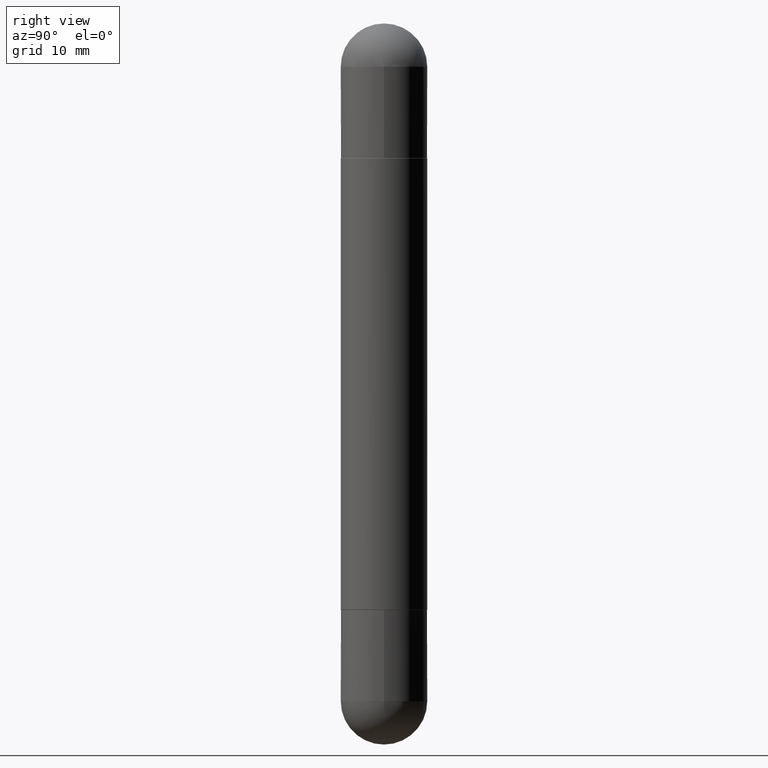
[diagram: clean part render]
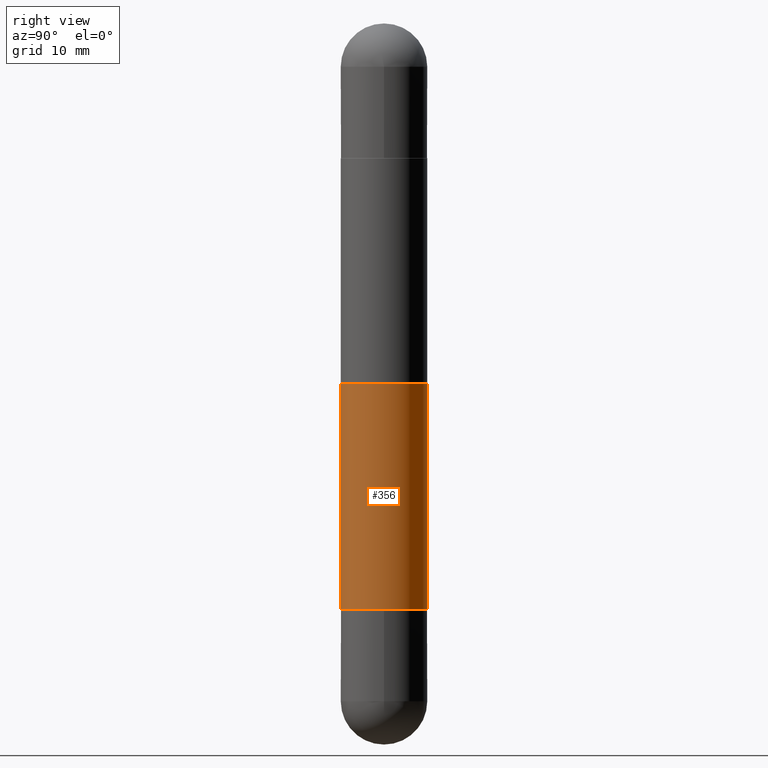
[diagram: same view with one face highlighted and labeled with its STEP entity id]
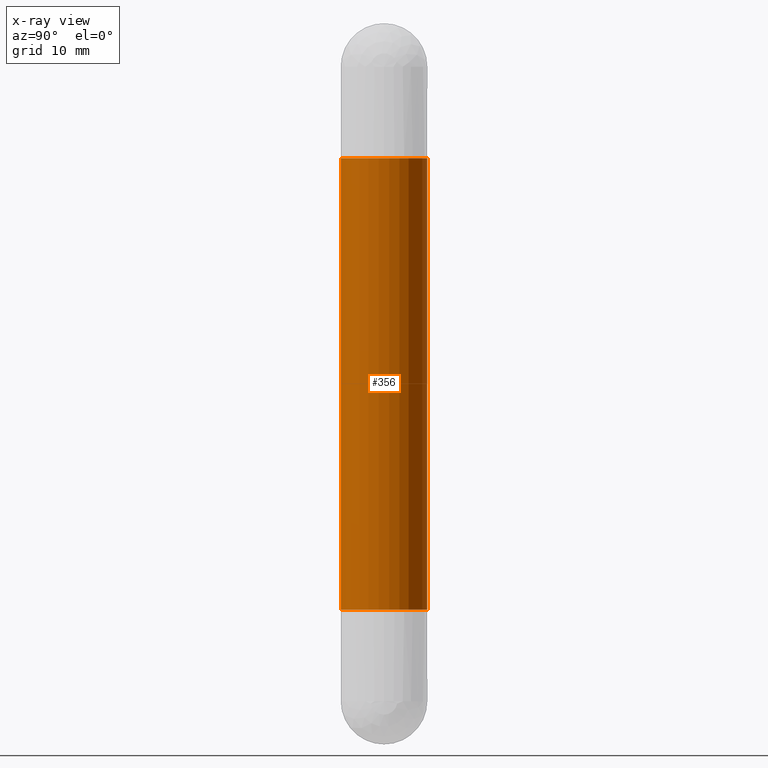
[diagram: x-ray of the same camera — body ghosted, the highlighted face saturated]
A machine part, right view. The second image highlights one B-rep face of the part: STEP entity #356.
The next image is the same camera in x-ray: the body ghosted, the highlighted face saturated — about 0% of this face is hidden behind the body in this view.
In plain terms, the highlighted cylindrical surface (partial cylindrical patch) has radius 4.4996 mm, axis along (-0, 0, -1).
Its self-contained STEP definition (entity closure, byte-faithful):
#3 = CARTESIAN_POINT ( 'NONE',  ( -1.237031838352065399E-15, -0.1771500000000086894, -2.400599999999998957 ) ) ;
#22 = ORIENTED_EDGE ( 'NONE', *, *, #476, .T. ) ;
#31 = ORIENTED_EDGE ( 'NONE', *, *, #631, .F. ) ;
#43 = CARTESIAN_POINT ( 'NONE',  ( 5.869655043916990285E-29, -8.382992472384988928E-15, -0.5522000000000002462 ) ) ;
#61 = CARTESIAN_POINT ( 'NONE',  ( -1.237031838352123183E-15, -0.1771500000000001962, -2.952800000000000313 ) ) ;
#84 = DIRECTION ( 'NONE',  ( -2.445078332049067200E-29, 3.492040520030404421E-15, -1.000000000000000000 ) ) ;
#110 = AXIS2_PLACEMENT_3D ( 'NONE', #407, #280, #721 ) ;
#121 = ORIENTED_EDGE ( 'NONE', *, *, #212, .T. ) ;
#131 = LINE ( 'NONE', #61, #760 ) ;
#133 = CARTESIAN_POINT ( 'NONE',  ( 1.215337220305227887E-15, 0.1771500000000001962, -2.952799999999998981 ) ) ;
#167 = CYLINDRICAL_SURFACE ( 'NONE', #110, 0.1771500000000001962 ) ;
#179 = DIRECTION ( 'NONE',  ( -6.982962677686265133E-15, -1.000000000000000000, 3.084220145260240702E-15 ) ) ;
#201 = CARTESIAN_POINT ( 'NONE',  ( 1.215337220305287643E-15, 0.1771499999999919250, -0.5521999999999995801 ) ) ;
#212 = EDGE_CURVE ( 'NONE', #240, #336, #131, .T. ) ;
#240 = VERTEX_POINT ( 'NONE', #399 ) ;
#275 = DIRECTION ( 'NONE',  ( -2.445078332049067200E-29, 3.492040520030404421E-15, -1.000000000000000000 ) ) ;
#280 = DIRECTION ( 'NONE',  ( -2.445078332049067200E-29, 3.492040520030404815E-15, -1.000000000000000000 ) ) ;
#298 = DIRECTION ( 'NONE',  ( 2.445078332049067200E-29, -3.492040520030404815E-15, 1.000000000000000000 ) ) ;
#333 = AXIS2_PLACEMENT_3D ( 'NONE', #43, #298, #556 ) ;
#336 = VERTEX_POINT ( 'NONE', #3 ) ;
#356 = ADVANCED_FACE ( 'NONE', ( #410 ), #167, .T. ) ;
#364 = CARTESIAN_POINT ( 'NONE',  ( 5.869655043916990285E-29, -8.382992472384988928E-15, -2.400599999999999401 ) ) ;
#399 = CARTESIAN_POINT ( 'NONE',  ( -1.237031838352065793E-15, -0.1771500000000087172, -0.5522000000000008013 ) ) ;
#407 = CARTESIAN_POINT ( 'NONE',  ( 0.000000000000000000, 0.000000000000000000, -2.952799999999999869 ) ) ;
#410 = FACE_OUTER_BOUND ( 'NONE', #563, .T. ) ;
#440 = CIRCLE ( 'NONE', #333, 0.1771500000000003350 ) ;
#476 = EDGE_CURVE ( 'NONE', #336, #644, #735, .T. ) ;
#556 = DIRECTION ( 'NONE',  ( -6.982962677686265133E-15, -1.000000000000000000, -3.469747663417770691E-15 ) ) ;
#563 = EDGE_LOOP ( 'NONE', ( #780, #31, #121, #22 ) ) ;
#564 = DIRECTION ( 'NONE',  ( -2.445078332049067200E-29, 3.492040520030404815E-15, 1.000000000000000000 ) ) ;
#631 = EDGE_CURVE ( 'NONE', #240, #690, #440, .T. ) ;
#644 = VERTEX_POINT ( 'NONE', #708 ) ;
#652 = LINE ( 'NONE', #133, #748 ) ;
#690 = VERTEX_POINT ( 'NONE', #201 ) ;
#705 = EDGE_CURVE ( 'NONE', #690, #644, #652, .T. ) ;
#708 = CARTESIAN_POINT ( 'NONE',  ( 1.215337220305264569E-15, 0.1771499999999919528, -2.400600000000000289 ) ) ;
#721 = DIRECTION ( 'NONE',  ( -6.982962677686265133E-15, -1.000000000000000000, -3.084220145260243069E-15 ) ) ;
#735 = CIRCLE ( 'NONE', #773, 0.1771500000000003350 ) ;
#748 = VECTOR ( 'NONE', #84, 39.37007874015748143 ) ;
#760 = VECTOR ( 'NONE', #275, 39.37007874015748143 ) ;
#773 = AXIS2_PLACEMENT_3D ( 'NONE', #364, #564, #179 ) ;
#780 = ORIENTED_EDGE ( 'NONE', *, *, #705, .F. ) ;